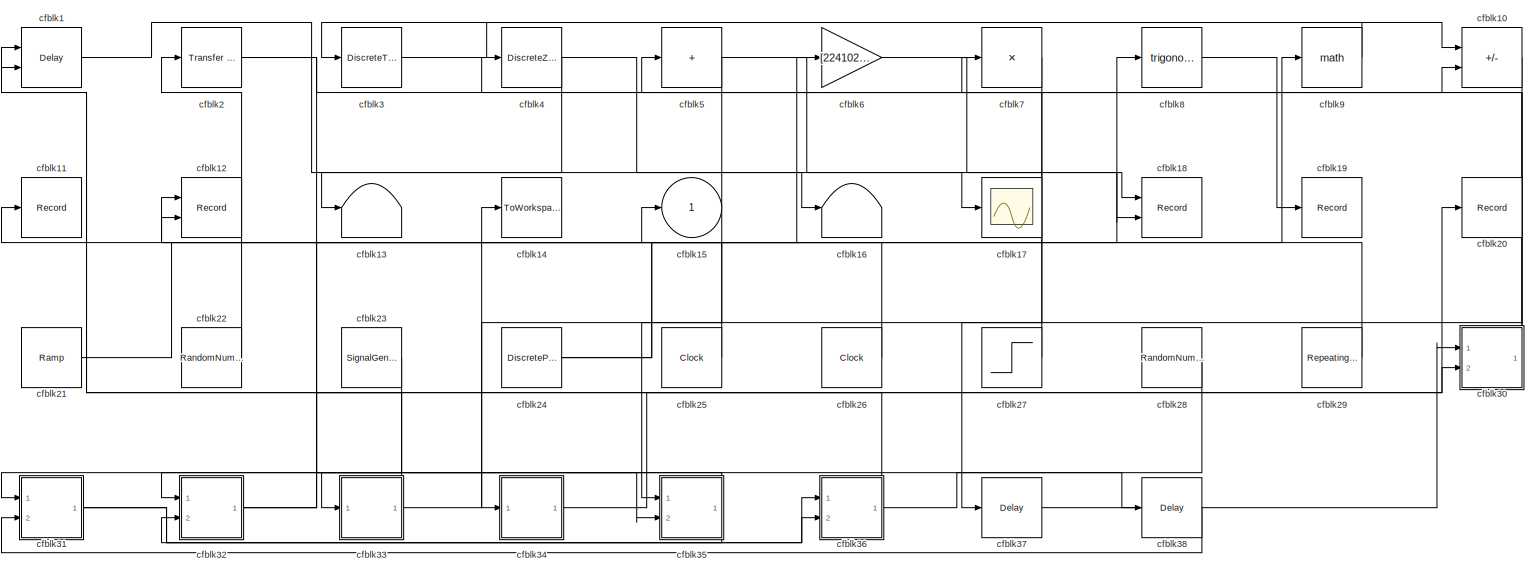
[diagram: root canvas - part 1/1, most of the canvas]
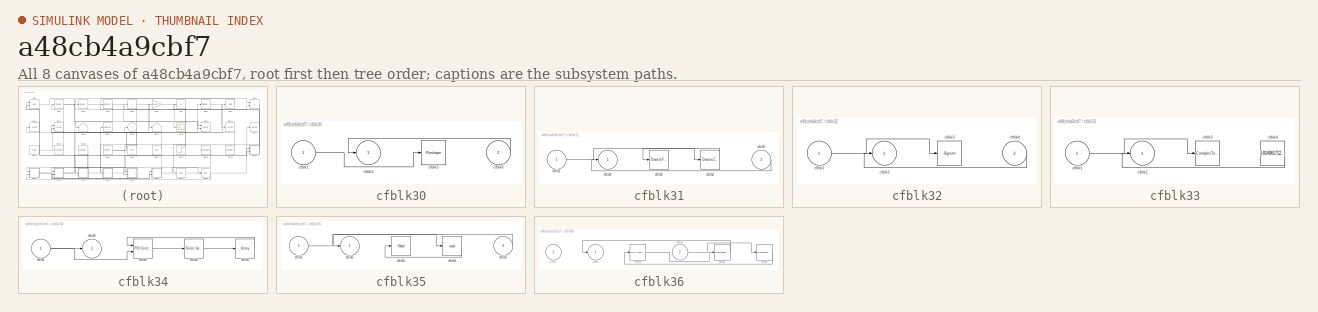
[diagram: thumbnail index - all 8 canvases of the model, root first then tree order]
MODEL slx_a48cb4a9cbf7
KIND model
CONFIG AbsTol = auto
CONFIG EnableMultiTasking = off
CONFIG FixedStep = auto
CONFIG MaxStep = auto
CONFIG MinStep = auto
CONFIG RelTol = 1e-3
CONFIG SampleTimeConstraint = Unconstrained
CONFIG SolverName = VariableStepAuto
CONFIG StartTime = 0.0
CONFIG StopTime = 10.0
BLOCK [Delay] cfblk1
  DelayLengthSource = Input port
  InputPortMap = u0,p1
  Ports = [2, 1]
  SampleTime = 1
BLOCK [Sum] cfblk10
  IconShape = rectangular
  Inputs = -+
  Ports = [2, 1]
BLOCK [Record] cfblk11
  FileSettingsInternal = {"entries":[{"content":{"excelSettings":{"content":{},"type":"Streamout.ExcelSettings"}},"type":"Streamout.FileSettingStorage","uuid":"44e89436-edd4-473a-b5cc-66e62b20e911"}],"packageUris":["http://schema.mathworks.com/mf0/streamout_blocks/R2020a"],"version":"1.0"}
  Ports = [1]
  SignalsInternal = {"entries":[{"content":{"signals":[{"content":{"blockPath":["sampleModel252/cfblk11"],"channel":[],"dimensions":[1],"domain":"sampleModel252/cfblk11","lineColor":"#22b573","plots":[1],"port":1,"sid":[""],"signalID":10291,"signalName":"cfblk25"},"type":"RecordBlkView.Signal","uuid":"e4851d7a-3ed2-4e80-aa2d-33c835d7a199"}]},"type":"RecordBlkView.InputSignals","uuid":"79aa5257-75b1-4121-b9c6-904add3f...<+98ch>
  VisualizationBindings = {"sparklinesplugin":{"info":[{"bindingParametersList":[],"subplotID":1}]}}
BLOCK [Record] cfblk12
  CompatibilityTag = XY
  FileSettingsInternal = {"entries":[{"content":{"excelSettings":{"content":{},"type":"Streamout.ExcelSettings"}},"type":"Streamout.FileSettingStorage","uuid":"051d43ba-f0f5-448b-8c6a-41c192429585"}],"packageUris":["http://schema.mathworks.com/mf0/streamout_blocks/R2020a"],"version":"1.0"}
  Layout = [1 1]
  Ports = [2]
  SignalsInternal = {"entries":[{"content":{"signals":[{"content":{"blockPath":["sampleModel252/cfblk12"],"channel":[],"dimensions":[1],"domain":"sampleModel252/cfblk12","lineColor":"#a2142f","plots":[1],"port":1,"sid":[""],"signalID":10295,"signalName":"cfblk26"},"type":"RecordBlkView.Signal","uuid":"c4f03533-b709-4234-bfb4-57e34ca4f87b"},{"content":{"blockPath":["sampleModel252/cfblk12"],"channel":[],"dimensions":[...<+385ch>
  VisualizationBindings = {"xyplotplugin":{"info":[{"series":[{"bindingParametersList":[{"parameter":"X-Axis","signalID":10295,"signalName":"cfblk26"},{"parameter":"Y-Axis","signalID":10299,"signalName":"cfblk29"}],"seriesID":15997}],"subplotID":1}]}}
BLOCK [Terminator] cfblk13
BLOCK [ToWorkspace] cfblk14
  FixptAsFi = on
  MaxDataPoints = inf
  Ports = [1]
  SampleTime = -1
  SaveFormat = Timeseries
  VariableName = blfjdkz
BLOCK [Outport] cfblk15
BLOCK [Terminator] cfblk16
BLOCK [Scope] cfblk17
  Floating = off
  NumInputPorts = 1
  Ports = [1]
BLOCK [Record] cfblk18
  CompatibilityTag = XY
  FileSettingsInternal = {"entries":[{"content":{"excelSettings":{"content":{},"type":"Streamout.ExcelSettings"}},"type":"Streamout.FileSettingStorage","uuid":"ade9a892-edf4-40aa-9295-670f544cec71"}],"packageUris":["http://schema.mathworks.com/mf0/streamout_blocks/R2020a"],"version":"1.0"}
  Layout = [1 1]
  Ports = [2]
  SignalsInternal = {"entries":[{"content":{"signals":[{"content":{"blockPath":["sampleModel252/cfblk18"],"channel":[],"dimensions":[1],"domain":"sampleModel252/cfblk18","lineColor":"#a2142f","plots":[1],"port":1,"sid":[""],"signalID":10303,"signalName":"cfblk5"},"type":"RecordBlkView.Signal","uuid":"9758d549-91df-4d2e-87e9-119bab326cd0"},{"content":{"blockPath":["sampleModel252/cfblk18"],"channel":[],"dimensions":[1...<+383ch>
  VisualizationBindings = {"xyplotplugin":{"info":[{"series":[{"bindingParametersList":[{"parameter":"X-Axis","signalID":10303,"signalName":"cfblk5"},{"parameter":"Y-Axis","signalID":10307,"signalName":"cfblk6"}],"seriesID":11422}],"subplotID":1}]}}
BLOCK [Record] cfblk19
  FileSettingsInternal = {"entries":[{"content":{"excelSettings":{"content":{},"type":"Streamout.ExcelSettings"}},"type":"Streamout.FileSettingStorage","uuid":"96aed70e-c226-41f4-ac76-869c9b702874"}],"packageUris":["http://schema.mathworks.com/mf0/streamout_blocks/R2020a"],"version":"1.0"}
  Ports = [1]
  SignalsInternal = {"entries":[{"content":{"signals":[{"content":{"blockPath":["sampleModel252/cfblk19"],"channel":[],"dimensions":[1],"domain":"sampleModel252/cfblk19","lineColor":"#4dbeee","plots":[1],"port":1,"sid":[""],"signalID":10315,"signalName":"cfblk8"},"type":"RecordBlkView.Signal","uuid":"5179b6fc-e478-4489-a696-40a7483971c8"}]},"type":"RecordBlkView.InputSignals","uuid":"410795da-01b0-48da-bf93-a51085923...<+97ch>
  VisualizationBindings = {"sparklinesplugin":{"info":[{"bindingParametersList":[],"subplotID":1}]}}
BLOCK [Reference] cfblk2  REF=simulink/Discrete/Transfer Fcn
Real Zero
  Ports = [1, 1]
  SourceBlock = simulink/Discrete/Transfer Fcn\nReal Zero
  SourceProductBaseCode = SL
  SourceType = Transfer Fcn Real Zero
BLOCK [Record] cfblk20
  FileSettingsInternal = {"entries":[{"content":{"excelSettings":{"content":{},"type":"Streamout.ExcelSettings"}},"type":"Streamout.FileSettingStorage","uuid":"1051c1a6-9bd6-4694-8d4e-881bc962e1c8"}],"packageUris":["http://schema.mathworks.com/mf0/streamout_blocks/R2020a"],"version":"1.0"}
  Ports = [1]
  SignalsInternal = {"entries":[{"content":{"signals":[{"content":{"blockPath":["sampleModel252/cfblk20"],"channel":[],"dimensions":[1],"domain":"sampleModel252/cfblk20","lineColor":"#77ac30","plots":[1],"port":1,"sid":[""],"signalID":10311,"signalName":"cfblk34"},"type":"RecordBlkView.Signal","uuid":"23cab0c8-4a2b-4001-8804-e9a677dec14c"}]},"type":"RecordBlkView.InputSignals","uuid":"77747b01-b14c-4821-ae74-2040c87e...<+98ch>
  VisualizationBindings = {"sparklinesplugin":{"info":[{"bindingParametersList":[],"subplotID":1}]}}
BLOCK [Reference] cfblk21  REF=simulink/Sources/Ramp
  Ports = [0, 1]
  SourceBlock = simulink/Sources/Ramp
  SourceProductBaseCode = SL
  SourceType = Ramp
BLOCK [RandomNumber] cfblk22
  Mean = [26102.819386]
  SampleTime = 0.1
  Seed = [130425576.000000]
  Variance = [60525.412392]
BLOCK [SignalGenerator] cfblk23
  Amplitude = [98547979.692999]
  Ports = [0, 1]
  Units = rad/sec
BLOCK [DiscretePulseGenerator] cfblk24
  Amplitude = [447654732.259538]
  Period = [6091046.167399]
  PhaseDelay = [6.000000]
  Ports = [0, 1]
  PulseType = Time based
  PulseWidth = 5
BLOCK [Clock] cfblk25
BLOCK [Clock] cfblk26
BLOCK [Step] cfblk27
  After = [-844362979.386919]
  Before = [599433157.427411]
  SampleTime = 0
  Time = [18.000000]
BLOCK [RandomNumber] cfblk28
  Mean = [-50599.682081]
  SampleTime = 0.1
  Seed = [947399720.000000]
  Variance = [11398.264786]
BLOCK [Reference] cfblk29  REF=simulink/Sources/Repeating
Sequence
Stair
  Ports = [0, 1]
  SourceBlock = simulink/Sources/Repeating\nSequence\nStair
  SourceProductBaseCode = SL
  SourceType = Repeating Sequence Stair
BLOCK [DiscreteTransferFcn] cfblk3
  InputPortMap = u0
  Ports = [1, 1]
  SampleTime = 1
BLOCK [SubSystem] cfblk30
  Ports = [2, 1]
  RequestExecContextInheritance = off
BLOCK [Inport] cfblk30/cfblk1
BLOCK [Outport] cfblk30/cfblk2
BLOCK [Reshape] cfblk30/cfblk3
  Ports = [1, 1]
BLOCK [Inport] cfblk30/cfblk4
  Port = 2
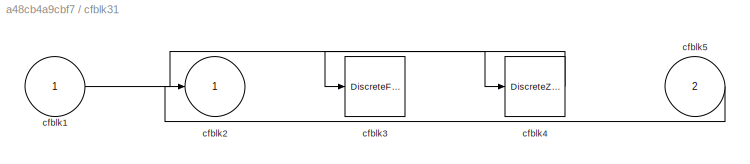
BLOCK [SubSystem] cfblk31
  Ports = [2, 1]
  RequestExecContextInheritance = off
BLOCK [Inport] cfblk31/cfblk1
BLOCK [Outport] cfblk31/cfblk2
BLOCK [DiscreteFilter] cfblk31/cfblk3
  InputPortMap = u0
  Ports = [1, 1]
  SampleTime = 1
BLOCK [DiscreteZeroPole] cfblk31/cfblk4
  Gain = 1
  Poles = [0 0.5]
BLOCK [Inport] cfblk31/cfblk5
  Port = 2
BLOCK [SubSystem] cfblk32
  Ports = [2, 1]
  RequestExecContextInheritance = off
BLOCK [Inport] cfblk32/cfblk1
BLOCK [Outport] cfblk32/cfblk2
BLOCK [Signum] cfblk32/cfblk3
BLOCK [Inport] cfblk32/cfblk4
  Port = 2
BLOCK [SubSystem] cfblk33
  Ports = [1, 1]
  RequestExecContextInheritance = off
BLOCK [Inport] cfblk33/cfblk1
BLOCK [Outport] cfblk33/cfblk2
BLOCK [ComplexToRealImag] cfblk33/cfblk3
  Ports = [1, 2]
BLOCK [Constant] cfblk33/cfblk4
  SampleTime = 1
  Value = [-914961712.293501]
BLOCK [SubSystem] cfblk34
  Ports = [1, 1]
  RequestExecContextInheritance = off
BLOCK [Inport] cfblk34/cfblk1
BLOCK [Outport] cfblk34/cfblk2
BLOCK [Reference] cfblk34/cfblk3  REF=slpidlib/PID Controller (2DOF)
  Ports = [2, 1]
  SourceBlock = slpidlib/PID Controller (2DOF)
  SourceProductBaseCode = SL
  SourceType = PID 2dof
BLOCK [Reference] cfblk34/cfblk4  REF=simulink/Math
Operations/Slider
Gain
  Ports = [1, 1]
  SourceBlock = simulink/Math\nOperations/Slider\nGain
  SourceProductBaseCode = SL
  SourceType = Slider Gain
BLOCK [Delay] cfblk34/cfblk5
  InputPortMap = u0
  Ports = [1, 1]
  SampleTime = 1
BLOCK [SubSystem] cfblk35
  Ports = [2, 1]
  RequestExecContextInheritance = off
BLOCK [Inport] cfblk35/cfblk1
BLOCK [Outport] cfblk35/cfblk2
BLOCK [Sqrt] cfblk35/cfblk3
  AlgorithmType = Newton-Raphson
  Operator = rSqrt
BLOCK [Sqrt] cfblk35/cfblk4
BLOCK [Inport] cfblk35/cfblk5
  Port = 2
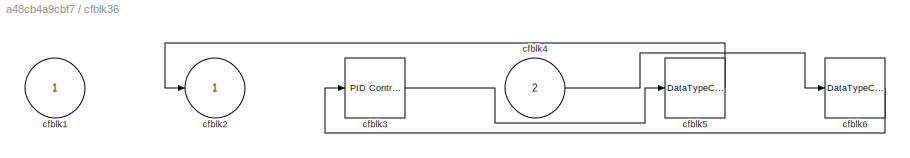
BLOCK [SubSystem] cfblk36
  Ports = [2, 1]
  RequestExecContextInheritance = off
BLOCK [Inport] cfblk36/cfblk1
BLOCK [Outport] cfblk36/cfblk2
BLOCK [Reference] cfblk36/cfblk3  REF=slpidlib/PID Controller
  Ports = [1, 1]
  SourceBlock = slpidlib/PID Controller
  SourceProductBaseCode = SL
  SourceType = PID 1dof
BLOCK [Inport] cfblk36/cfblk4
  Port = 2
BLOCK [DataTypeConversion] cfblk36/cfblk5
  RndMeth = Floor
  SaturateOnIntegerOverflow = off
BLOCK [DataTypeConversion] cfblk36/cfblk6
  RndMeth = Floor
  SaturateOnIntegerOverflow = off
BLOCK [Delay] cfblk37
  InputPortMap = u0
  Ports = [1, 1]
  SampleTime = 1
BLOCK [Delay] cfblk38
  InputPortMap = u0
  Ports = [1, 1]
  SampleTime = 1
BLOCK [DiscreteZeroPole] cfblk4
  Gain = 1
  Poles = [0 0.5]
BLOCK [Sum] cfblk5
  IconShape = rectangular
  Inputs = +
  Ports = [1, 1]
BLOCK [Gain] cfblk6
  Gain = [224102095.379058]
BLOCK [Product] cfblk7
  Inputs = *
  Ports = [1, 1]
BLOCK [Trigonometry] cfblk8
  Ports = [1, 1]
BLOCK [Math] cfblk9
  Ports = [1, 1]
LINE cfblk10:1 -> cfblk35:1
LINE cfblk1:1 -> cfblk16:1
LINE cfblk21:1 -> cfblk6:1
LINE cfblk22:1 -> cfblk2:1
LINE cfblk23:1 -> cfblk33:1
NET cfblk24:1 -> cfblk8:1, cfblk9:1
LINE cfblk25:1 -> cfblk11:1
LINE cfblk26:1 -> cfblk12:1
LINE cfblk27:1 -> cfblk5:1
LINE cfblk28:1 -> cfblk31:1
LINE cfblk29:1 -> cfblk12:2
NET cfblk2:1 -> cfblk10:2, cfblk35:2
LINE cfblk30/cfblk1:1 -> cfblk30/cfblk3:1
LINE cfblk30/cfblk4:1 -> cfblk30/cfblk2:1
NET cfblk30:1 -> cfblk4:1, cfblk7:1
LINE cfblk31/cfblk1:1 -> cfblk31/cfblk4:1
LINE cfblk31/cfblk4:1 -> cfblk31/cfblk3:1
LINE cfblk31/cfblk5:1 -> cfblk31/cfblk2:1
NET cfblk31:1 -> cfblk36:1, cfblk36:2
LINE cfblk32/cfblk1:1 -> cfblk32/cfblk3:1
LINE cfblk32/cfblk4:1 -> cfblk32/cfblk2:1
NET cfblk32:1 -> cfblk15:1, cfblk30:2
LINE cfblk33/cfblk1:1 -> cfblk33/cfblk3:1
LINE cfblk33/cfblk4:1 -> cfblk33/cfblk2:1
NET cfblk33:1 -> cfblk14:1, cfblk1:1
NET cfblk34/cfblk1:1 -> cfblk34/cfblk2:1, cfblk34/cfblk3:2
LINE cfblk34/cfblk3:1 -> cfblk34/cfblk4:1
LINE cfblk34/cfblk4:1 -> cfblk34/cfblk5:1
LINE cfblk34/cfblk5:1 -> cfblk34/cfblk3:1
LINE cfblk34:1 -> cfblk20:1
LINE cfblk35/cfblk1:1 -> cfblk35/cfblk4:1
LINE cfblk35/cfblk4:1 -> cfblk35/cfblk3:1
LINE cfblk35/cfblk5:1 -> cfblk35/cfblk2:1
NET cfblk35:1 -> cfblk32:1, cfblk32:2
LINE cfblk36/cfblk3:1 -> cfblk36/cfblk5:1
LINE cfblk36/cfblk4:1 -> cfblk36/cfblk6:1
LINE cfblk36/cfblk5:1 -> cfblk36/cfblk2:1
LINE cfblk36/cfblk6:1 -> cfblk36/cfblk3:1
NET cfblk36:1 -> cfblk1:2, cfblk38:1
LINE cfblk37:1 -> cfblk30:1
LINE cfblk38:1 -> cfblk31:2
LINE cfblk3:1 -> cfblk10:1
NET cfblk4:1 -> cfblk13:1, cfblk17:1
NET cfblk5:1 -> cfblk18:1, cfblk34:1
LINE cfblk6:1 -> cfblk18:2
LINE cfblk7:1 -> cfblk37:1
LINE cfblk8:1 -> cfblk19:1
LINE cfblk9:1 -> cfblk3:1
note: NET lines group one-source signal fan-out (src -> all destinations, sorted); 1:1 wires keep LINE
